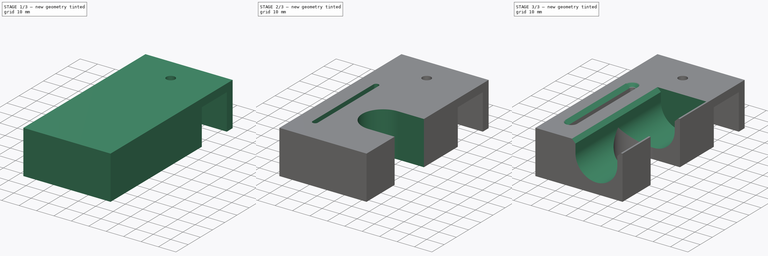
[diagram: build sequence overview — one tinted view per stage of 3, left to right]
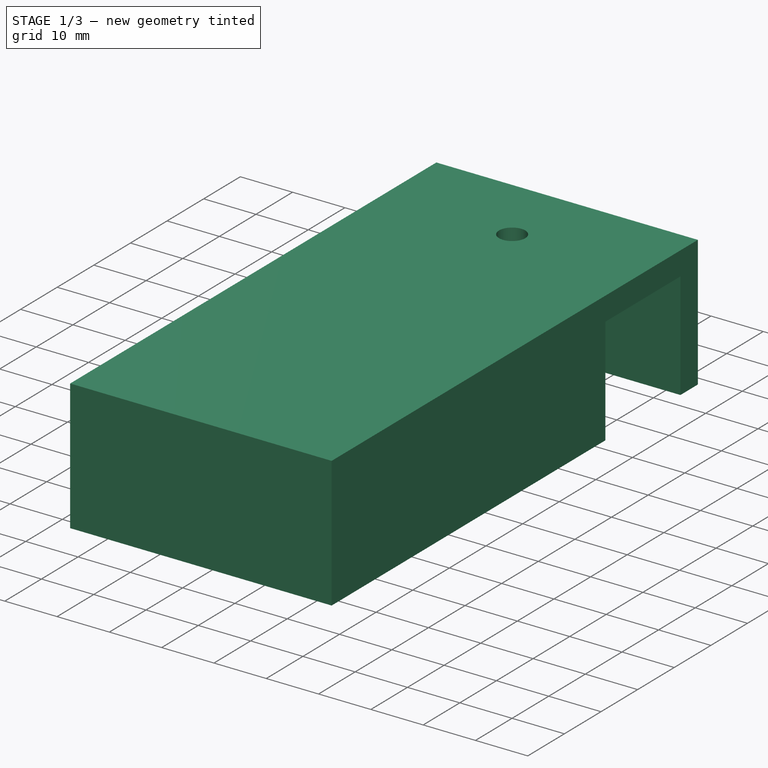
[diagram: stage 1 of 3 — iso view after this stage's code; geometry added in this stage tinted green]
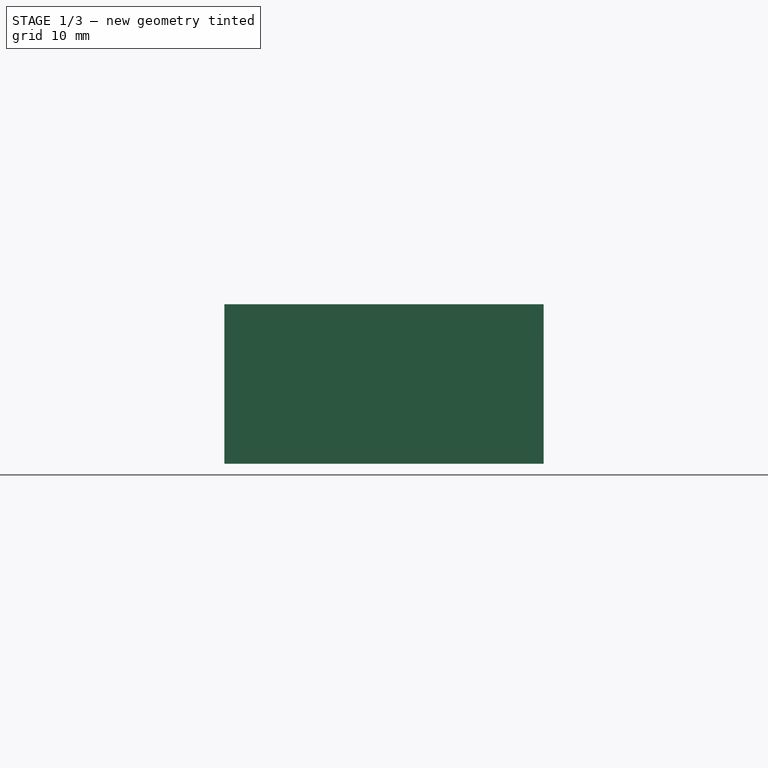
[diagram: stage 1 of 3 — front view after this stage's code; geometry added in this stage tinted green]
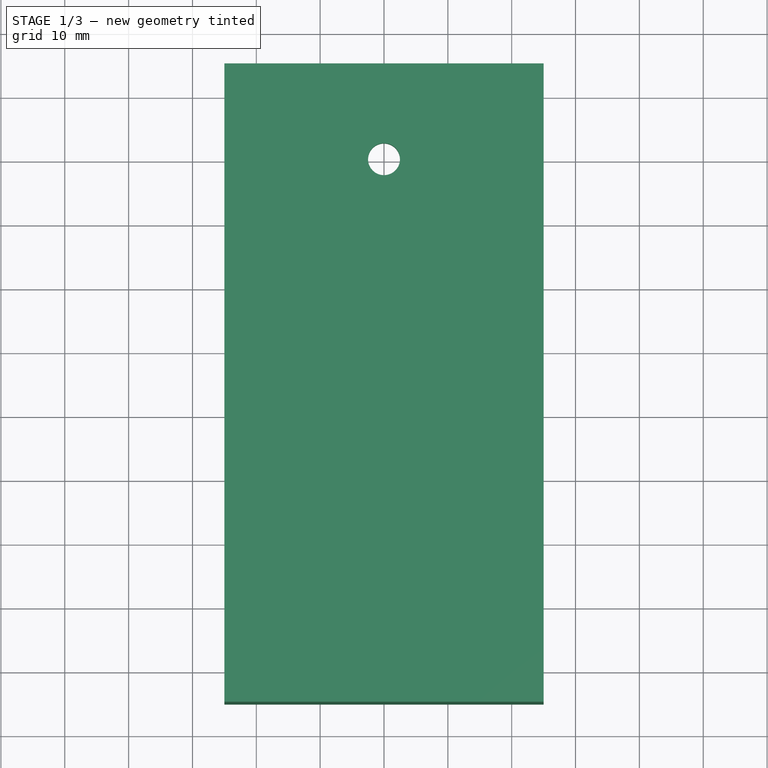
[diagram: stage 1 of 3 — top view after this stage's code; geometry added in this stage tinted green]
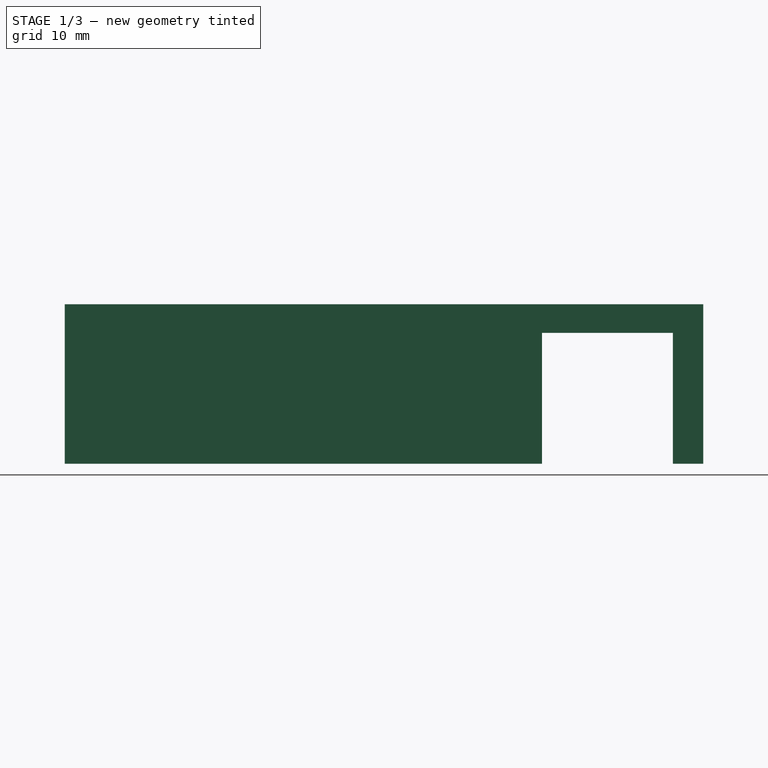
[diagram: stage 1 of 3 — right view after this stage's code; geometry added in this stage tinted green]
FCSTD DOCUMENT  (FreeCAD 0.16R6712 (Git))
Label: harvesting_tool_holder
License: All rights reserved
LicenseURL: http://en.wikipedia.org/wiki/All_rights_reserved
objects: Sketcher::SketchObject×6, PartDesign::Pocket×5, PartDesign::Chamfer×2, PartDesign::Pad×1
note: 20 computed .brp shape members not serialized (recipe doc carries the construction recipe); baked Part::Feature solids carry a one-line shape summary decoded from their .brp

FEATURE [Sketcher::SketchObject] Sketch
  sketch-geometry (8):
    g0: LineSegment StartX=-25 StartY=15 StartZ=0 EndX=25 EndY=15 EndZ=0
    g1: LineSegment StartX=25 StartY=15 StartZ=0 EndX=25 EndY=-85 EndZ=0
    g2: LineSegment StartX=25 StartY=-85 StartZ=0 EndX=-25 EndY=-85 EndZ=0
    g3: LineSegment StartX=-25 StartY=-85 StartZ=0 EndX=-25 EndY=15 EndZ=0
    g4: LineSegment [constr] StartX=-25 StartY=10 StartZ=0 EndX=25 EndY=10 EndZ=0
    g5: LineSegment [constr] StartX=25 StartY=10 StartZ=0 EndX=25 EndY=-10 EndZ=0
    g6: LineSegment [constr] StartX=25 StartY=-10 StartZ=0 EndX=-25 EndY=-10 EndZ=0
    g7: LineSegment [constr] StartX=-25 StartY=-10 StartZ=0 EndX=-25 EndY=10 EndZ=0
  constraints (24):
    c: Coincident(g0,g1)
    c: Coincident(g1,g2)
    c: Coincident(g2,g3)
    c: Coincident(g3,g0)
    c: Horizontal(g0)
    c: Horizontal(g2)
    c: Vertical(g1)
    c: Vertical(g3)
    c: Coincident(g4,g5)
    c: Coincident(g5,g6)
    c: Coincident(g6,g7)
    c: Coincident(g7,g4)
    c: Horizontal(g4)
    c: Horizontal(g6)
    c: Vertical(g5)
    c: Vertical(g7)
    c: DistanceY(g5,g4) = 20
    c: Symmetric(g4,g5,g-1)
    c: PointOnObject(g4,g3)
    c: PointOnObject(g4,g1)
    c: Symmetric(g0,g0,g-2)
    c: DistanceX(g0,g0) = 50
    c: DistanceY(g1,g1) = 100
    c: DistanceY(g4,g0) = 5
FEATURE [PartDesign::Pad] Pad  label="Main block"
  Length = 25
  Length2 = 100
  Sketch = -> Sketch
  Type = 0
FEATURE [Sketcher::SketchObject] Sketch001
  Placement = pos=(25,0,0) rot=(0.57735,0.57735,0.57735;2.0944rad)
  Support = -> Pad [Face2]
  sketch-geometry (4):
    g0: LineSegment StartX=10.25 StartY=0 StartZ=0 EndX=-10.25 EndY=0 EndZ=0
    g1: LineSegment StartX=-10.25 StartY=0 StartZ=0 EndX=-10.25 EndY=20.5 EndZ=0
    g2: LineSegment StartX=-10.25 StartY=20.5 StartZ=0 EndX=10.25 EndY=20.5 EndZ=0
    g3: LineSegment StartX=10.25 StartY=20.5 StartZ=0 EndX=10.25 EndY=0 EndZ=0
  constraints (11):
    c: Coincident(g0,g1)
    c: Coincident(g1,g2)
    c: Coincident(g2,g3)
    c: Coincident(g3,g0)
    c: Horizontal(g2)
    c: Vertical(g1)
    c: Vertical(g3)
    c: PointOnObject(g0,g-1)
    c: DistanceX(g2,g2) = 20.5
    c: DistanceY(g1,g1) = 20.5
    c: Symmetric(g0,g0,g-2)
FEATURE [PartDesign::Pocket] Pocket  label="Profile channel"
  Length = 1000
  Sketch = -> Sketch001
  Type = 0
FEATURE [Sketcher::SketchObject] Sketch002
  Placement = pos=(0,0,25) rot=(0,0,1;0rad)
  Support = -> Pocket [Face5]
  sketch-geometry (1):
    g0: Circle CenterX=0 CenterY=0 CenterZ=0 NormalX=0 NormalY=0 NormalZ=1 Radius=2.5
  constraints (1):
    c: Radius(g0) = 2.5
FEATURE [PartDesign::Pocket] Pocket001  label="Profile bolt hold"
  Length = 5
  Sketch = -> Sketch002
  Type = 0
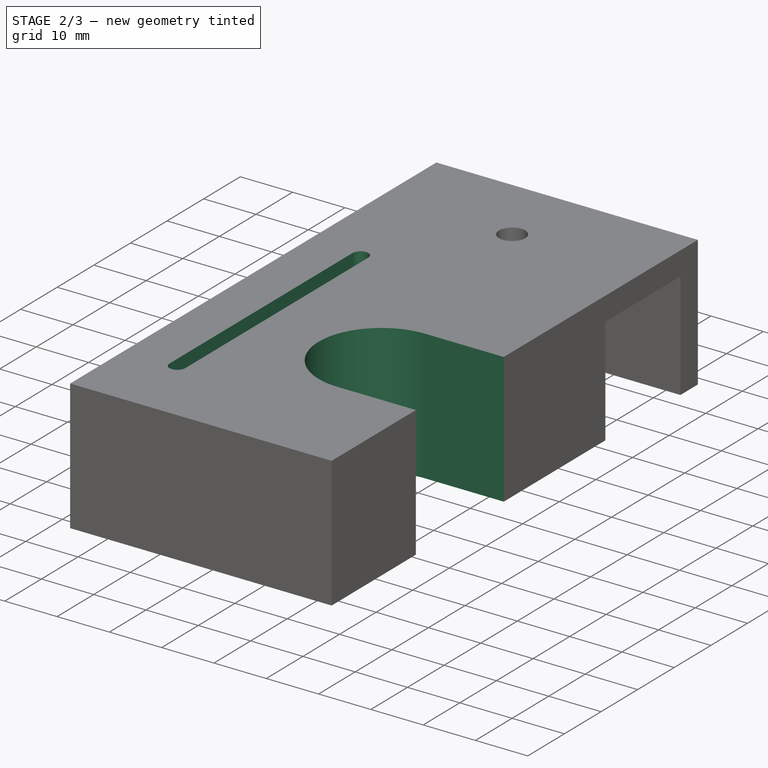
[diagram: stage 2 of 3 — iso view after this stage's code; geometry added in this stage tinted green]
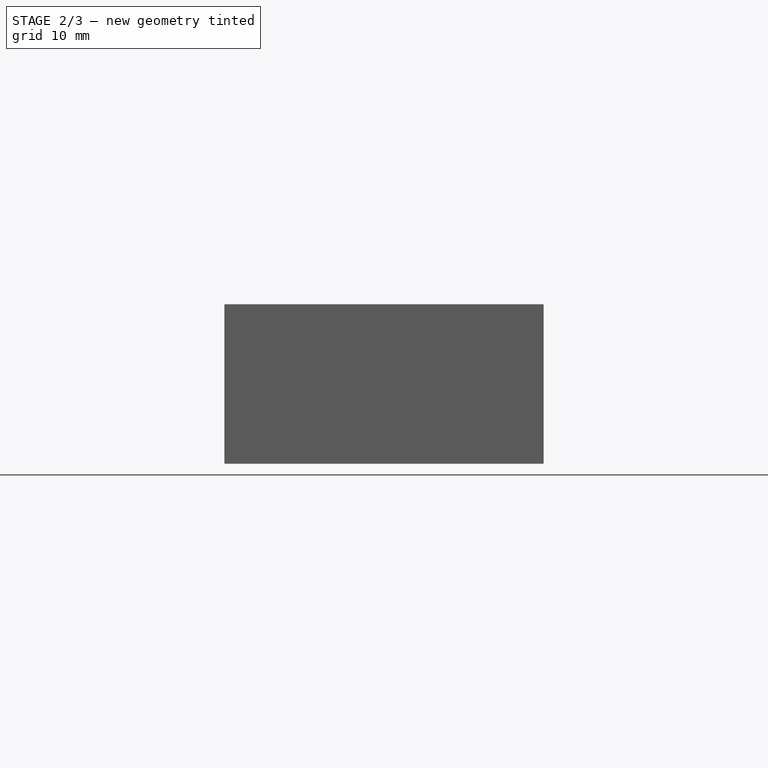
[diagram: stage 2 of 3 — front view after this stage's code; geometry added in this stage tinted green]
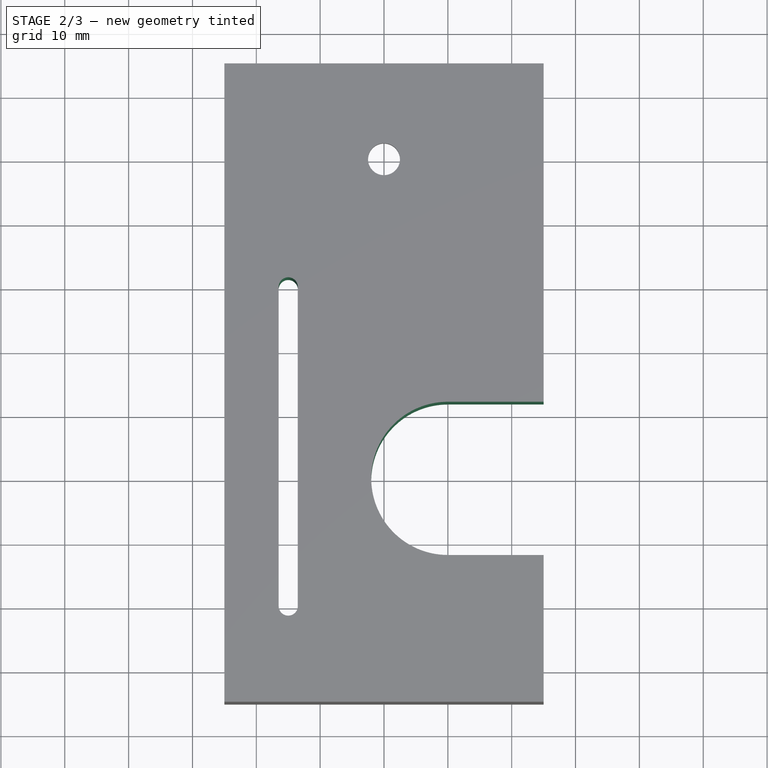
[diagram: stage 2 of 3 — top view after this stage's code; geometry added in this stage tinted green]
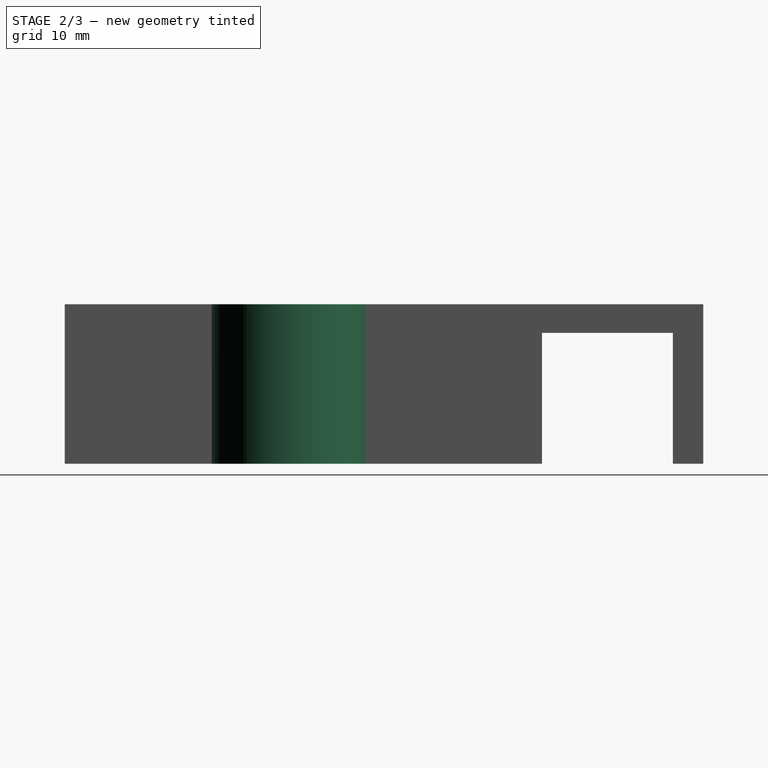
[diagram: stage 2 of 3 — right view after this stage's code; geometry added in this stage tinted green]
FEATURE [Sketcher::SketchObject] Sketch003
  ExternalGeometry = -> [Pocket001]
  Placement = pos=(0,0,25) rot=(0,0,1;0rad)
  Support = -> Pocket001 [Face5]
  sketch-geometry (4):
    g0: ArcOfCircle CenterX=-15 CenterY=-20 CenterZ=0 NormalX=0 NormalY=0 NormalZ=1 Radius=1.5 StartAngle=0 EndAngle=3.14159
    g1: ArcOfCircle CenterX=-15 CenterY=-70 CenterZ=0 NormalX=0 NormalY=0 NormalZ=1 Radius=1.5 StartAngle=3.14159 EndAngle=6.28319
    g2: LineSegment StartX=-16.5 StartY=-20 StartZ=0 EndX=-16.5 EndY=-70 EndZ=0
    g3: LineSegment StartX=-13.5 StartY=-20 StartZ=0 EndX=-13.5 EndY=-70 EndZ=0
  constraints (10):
    c: Tangent(g0,g3) = 1.5708
    c: Tangent(g0,g2) = -1.5708
    c: Tangent(g2,g1) = -1.5708
    c: Tangent(g3,g1) = 1.5708
    c: Vertical(g2)
    c: Equal(g0,g1)
    c: DistanceY(g3,g3) = 50
    c: DistanceX(g1,g1) = 3
    c: DistanceX(g-3,g1) = 10
    c: DistanceY(g-3,g1) = 15
FEATURE [PartDesign::Pocket] Pocket002  label="scraper_holder"
  Length = 1000
  Sketch = -> Sketch003
  Type = 0
FEATURE [Sketcher::SketchObject] Sketch004
  ExternalGeometry = -> [Pocket002]
  Placement = pos=(0,0,25) rot=(0,0,1;0rad)
  Support = -> Pocket002 [Face5]
  sketch-geometry (8):
    g0: LineSegment [constr] StartX=25 StartY=-85 StartZ=0 EndX=-5 EndY=-85 EndZ=0
    g1: LineSegment [constr] StartX=-5 StartY=-85 StartZ=0 EndX=-5 EndY=-15 EndZ=0
    g2: LineSegment [constr] StartX=-5 StartY=-15 StartZ=0 EndX=25 EndY=-15 EndZ=0
    g3: LineSegment [constr] StartX=25 StartY=-15 StartZ=0 EndX=25 EndY=-85 EndZ=0
    g4: ArcOfCircle CenterX=10 CenterY=-50 CenterZ=0 NormalX=0 NormalY=0 NormalZ=1 Radius=12 StartAngle=1.5708 EndAngle=4.71239
    g5: ArcOfCircle CenterX=42.2628 CenterY=-50 CenterZ=0 NormalX=0 NormalY=0 NormalZ=1 Radius=12 StartAngle=4.71239 EndAngle=7.85398
    g6: LineSegment StartX=10 StartY=-62 StartZ=0 EndX=42.2628 EndY=-62 EndZ=0
    g7: LineSegment StartX=10 StartY=-38 StartZ=0 EndX=42.2628 EndY=-38 EndZ=0
  constraints (19):
    c: Coincident(g0,g1)
    c: Coincident(g1,g2)
    c: Coincident(g2,g3)
    c: Coincident(g3,g0)
    c: Horizontal(g0)
    c: Horizontal(g2)
    c: Vertical(g1)
    c: Vertical(g3)
    c: Coincident(g0,g-3)
    c: DistanceY(g0,g2) = 70
    c: DistanceX(g1,g2) = 30
    c: Tangent(g4,g7) = 1.5708
    c: Tangent(g4,g6) = -1.5708
    c: Tangent(g6,g5) = -1.5708
    c: Tangent(g7,g5) = 1.5708
    c: Horizontal(g6)
    c: Equal(g4,g5)
    c: DistanceY(g5,g5) = 24
    c: Symmetric(g1,g0,g4)
FEATURE [PartDesign::Pocket] Pocket003  label="hammer_handle_pocket"
  Length = 1000
  Sketch = -> Sketch004
  Type = 0
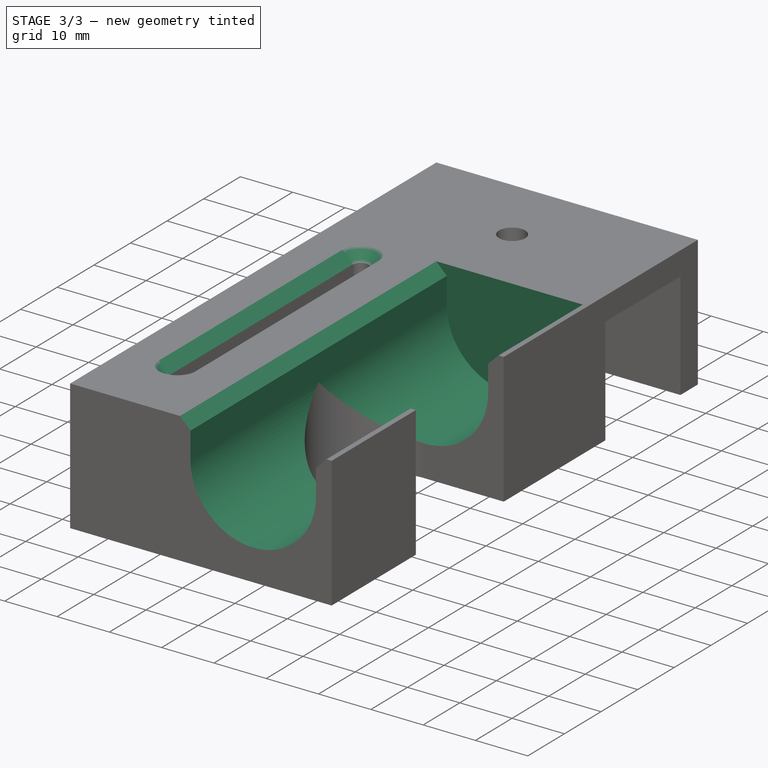
[diagram: stage 3 of 3 — iso view after this stage's code; geometry added in this stage tinted green]
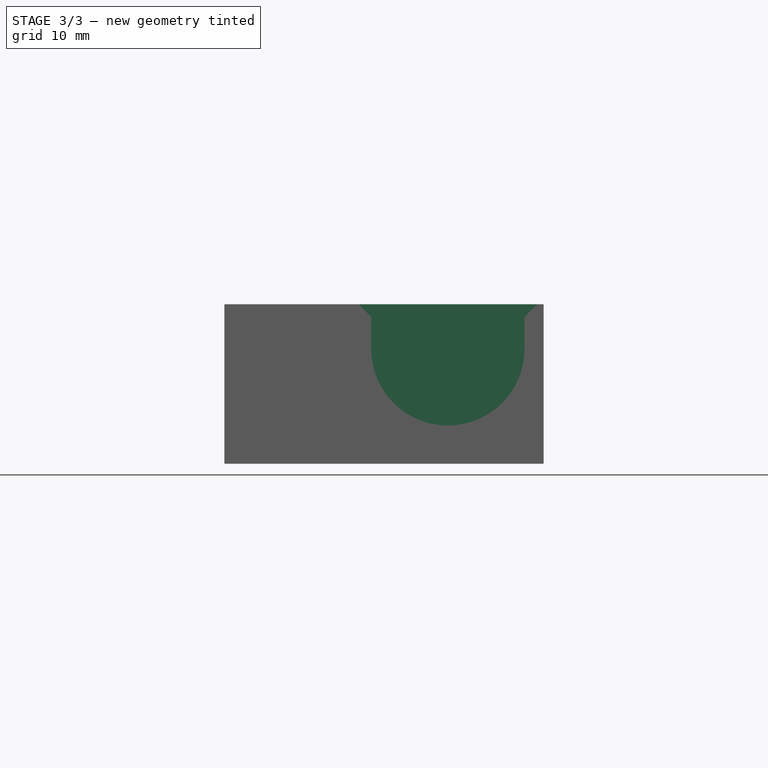
[diagram: stage 3 of 3 — front view after this stage's code; geometry added in this stage tinted green]
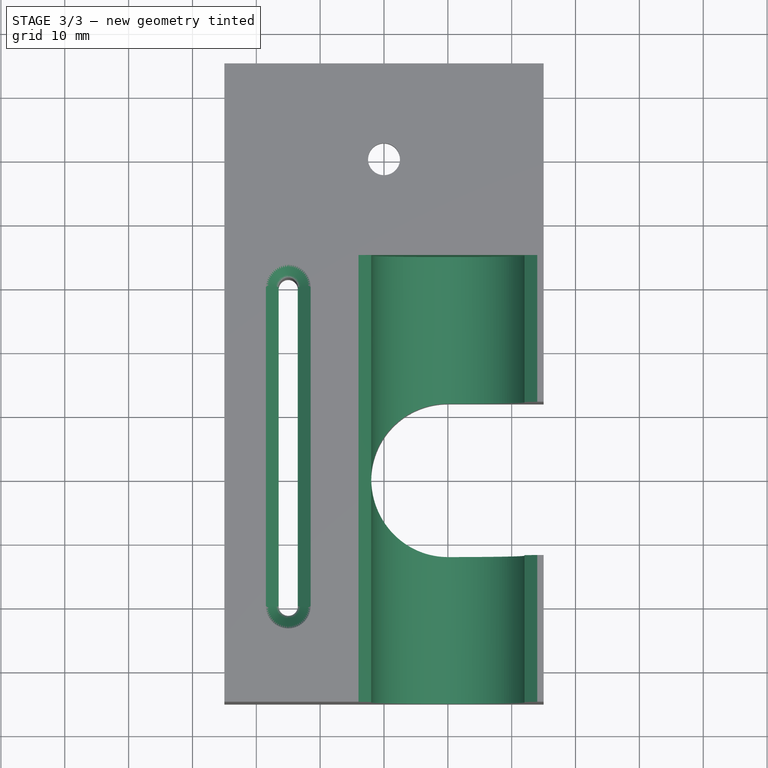
[diagram: stage 3 of 3 — top view after this stage's code; geometry added in this stage tinted green]
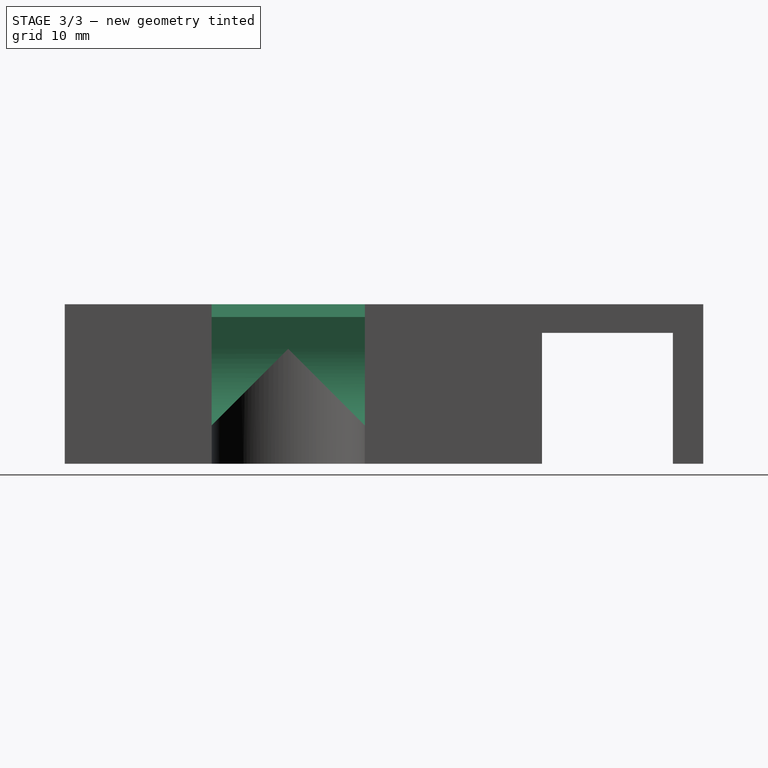
[diagram: stage 3 of 3 — right view after this stage's code; geometry added in this stage tinted green]
FEATURE [Sketcher::SketchObject] Sketch005
  ExternalGeometry = -> [Pocket003]
  Placement = pos=(0,-85,0) rot=(1,0,0;1.5708rad)
  Support = -> Pocket003 [Face10]
  sketch-geometry (8):
    g0: LineSegment [constr] StartX=25 StartY=0 StartZ=0 EndX=-5 EndY=0 EndZ=0
    g1: LineSegment [constr] StartX=-5 StartY=0 StartZ=0 EndX=-5 EndY=25 EndZ=0
    g2: LineSegment [constr] StartX=-5 StartY=25 StartZ=0 EndX=25 EndY=25 EndZ=0
    g3: LineSegment [constr] StartX=25 StartY=25 StartZ=0 EndX=25 EndY=0 EndZ=0
    g4: ArcOfCircle CenterX=10 CenterY=43.8192 CenterZ=0 NormalX=0 NormalY=0 NormalZ=1 Radius=12 StartAngle=0 EndAngle=3.14159
    g5: ArcOfCircle CenterX=10 CenterY=18 CenterZ=0 NormalX=0 NormalY=0 NormalZ=1 Radius=12 StartAngle=3.14159 EndAngle=6.28319
    g6: LineSegment StartX=-2 StartY=43.8192 StartZ=0 EndX=-2 EndY=18 EndZ=0
    g7: LineSegment StartX=22 StartY=43.8192 StartZ=0 EndX=22 EndY=18 EndZ=0
  constraints (20):
    c: Coincident(g0,g1)
    c: Coincident(g1,g2)
    c: Coincident(g2,g3)
    c: Coincident(g3,g0)
    c: Horizontal(g0)
    c: Horizontal(g2)
    c: Vertical(g1)
    c: Vertical(g3)
    c: Coincident(g0,g-3)
    c: DistanceX(g2,g2) = 30
    c: Coincident(g2,g-3)
    c: Tangent(g4,g7) = 1.5708
    c: Tangent(g4,g6) = -1.5708
    c: Tangent(g6,g5) = -1.5708
    c: Tangent(g7,g5) = 1.5708
    c: Vertical(g6)
    c: Equal(g4,g5)
    c: DistanceX(g5,g0) = 15
    c: DistanceX(g5,g5) = 24
    c: DistanceY(g0,g5) = 18
FEATURE [PartDesign::Pocket] Pocket004  label="hammer_head_pocket"
  Length = 70
  Sketch = -> Sketch005
  Type = 0
FEATURE [PartDesign::Chamfer] Chamfer
  Base = -> Pocket004 [Edge27,Edge26,Edge28,Edge29]
  Size = 2
FEATURE [PartDesign::Chamfer] Chamfer001
  Base = -> Chamfer [Edge11,Edge10,Edge78,Edge8]
  Size = 2
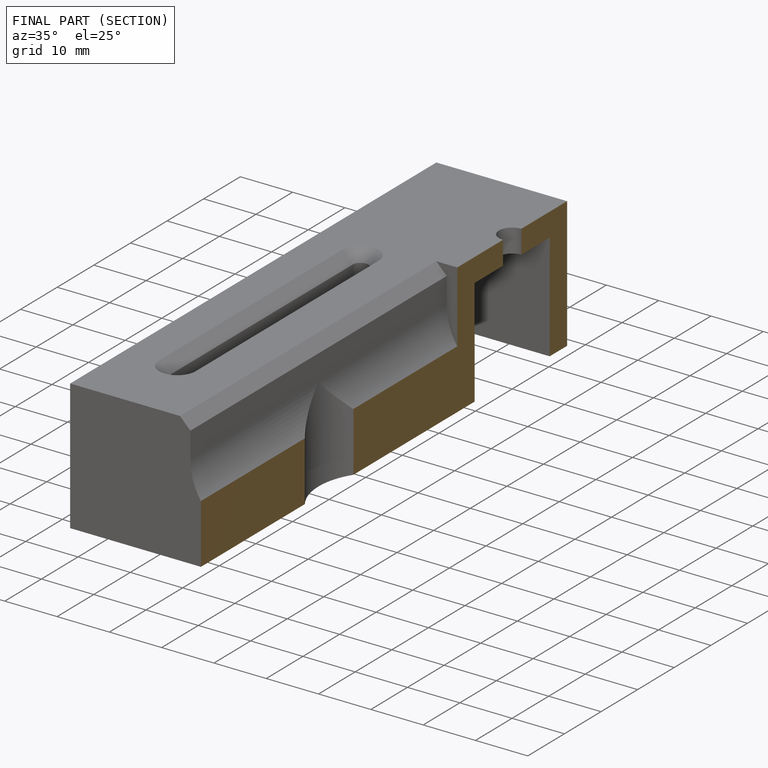
[diagram: finished part — half-section view (interior)]
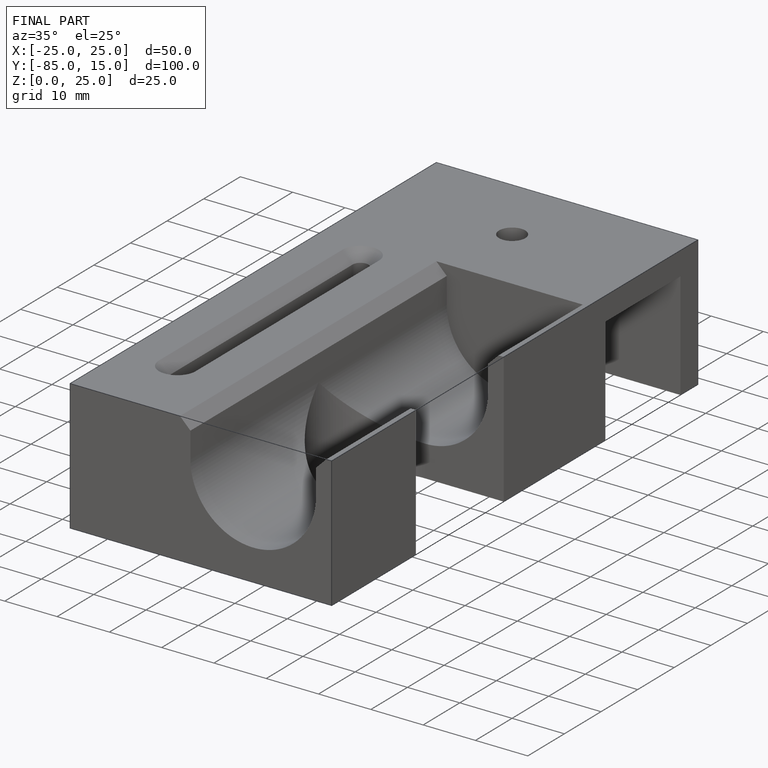
[diagram: finished part — iso view with bounding-box wireframe]
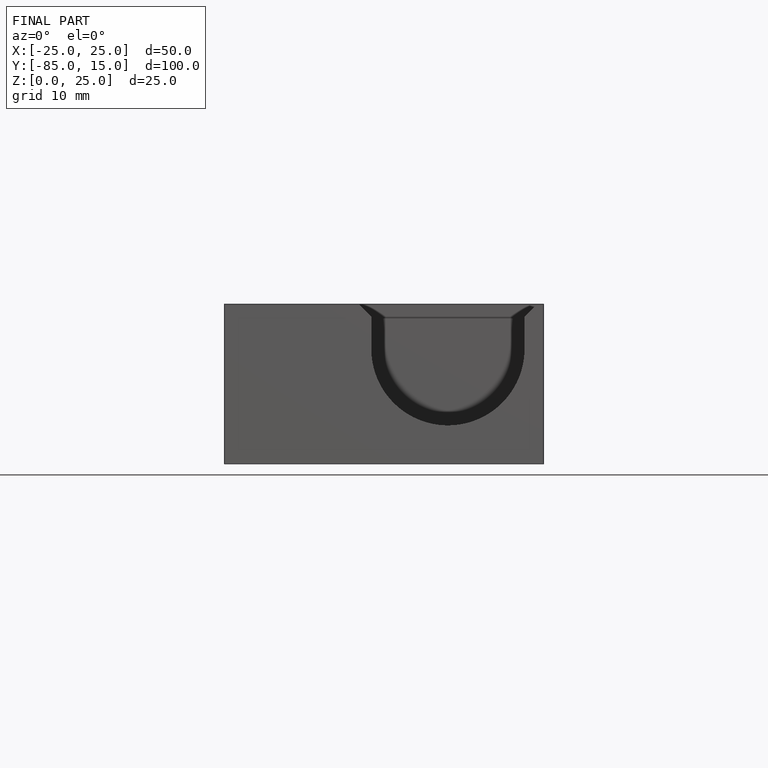
[diagram: finished part — front view with bounding-box wireframe]
